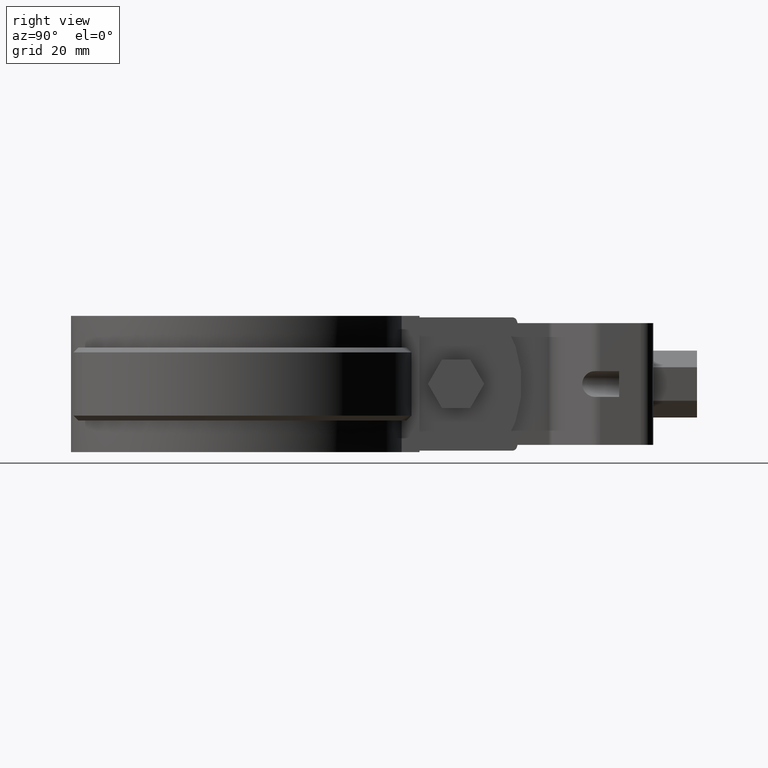
[diagram: clean part render]
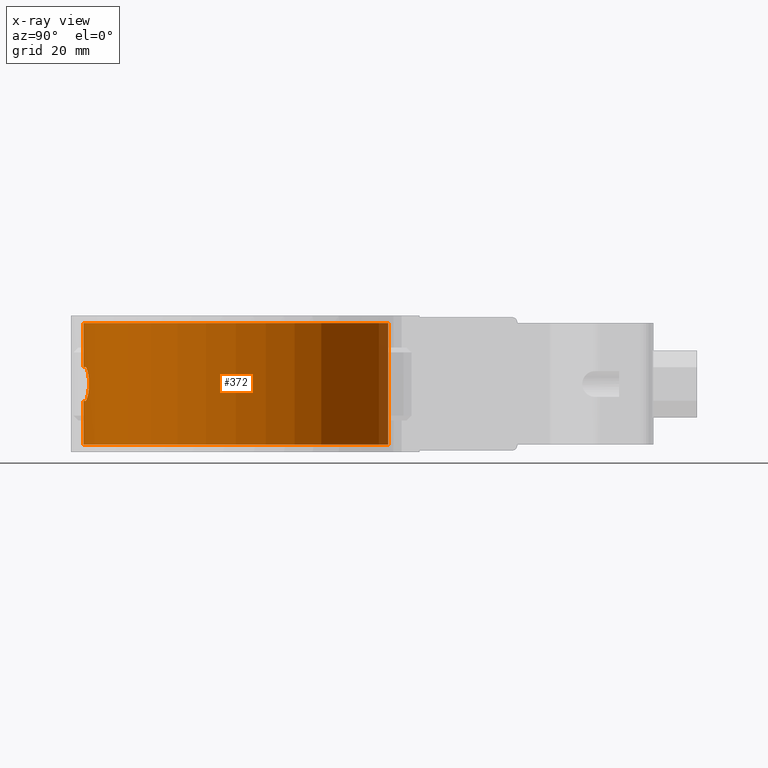
[diagram: x-ray — body ghosted, one internal face saturated and labeled with its STEP entity id]
A machine part, right view, then the same camera in x-ray: the body is ghosted and one INTERNAL B-rep face — a face not visible from any outside direction — is saturated and labeled: STEP entity #372.
In plain terms, the highlighted cylindrical surface (partial cylindrical patch) has radius 31.7 mm, axis along (0, 0, 1).
Its self-contained STEP definition (entity closure, byte-faithful):
#372 = ADVANCED_FACE( '', ( #726, #727 ), #728, .F. );
#726 = FACE_OUTER_BOUND( '', #1464, .T. );
#727 = FACE_BOUND( '', #1465, .T. );
#728 = CYLINDRICAL_SURFACE( '', #1466, 31.7000000000000 );
#1464 = EDGE_LOOP( '', ( #2940, #2941, #2942, #2943 ) );
#1465 = EDGE_LOOP( '', ( #2944, #2945, #2946, #2947, #2948, #2949, #2950, #2951, #2952, #2953, #2954, #2955, #2956, #2957, #2958, #2959 ) );
#1466 = AXIS2_PLACEMENT_3D( '', #2960, #2961, #2962 );
#2940 = ORIENTED_EDGE( '', *, *, #6649, .T. );
#2941 = ORIENTED_EDGE( '', *, *, #6650, .F. );
#2942 = ORIENTED_EDGE( '', *, *, #6651, .F. );
#2943 = ORIENTED_EDGE( '', *, *, #6597, .T. );
#2944 = ORIENTED_EDGE( '', *, *, #6652, .T. );
#2945 = ORIENTED_EDGE( '', *, *, #6653, .T. );
#2946 = ORIENTED_EDGE( '', *, *, #6654, .T. );
#2947 = ORIENTED_EDGE( '', *, *, #6655, .T. );
#2948 = ORIENTED_EDGE( '', *, *, #6656, .T. );
#2949 = ORIENTED_EDGE( '', *, *, #6657, .T. );
#2950 = ORIENTED_EDGE( '', *, *, #6647, .T. );
#2951 = ORIENTED_EDGE( '', *, *, #6644, .T. );
#2952 = ORIENTED_EDGE( '', *, *, #6646, .T. );
#2953 = ORIENTED_EDGE( '', *, *, #6607, .T. );
#2954 = ORIENTED_EDGE( '', *, *, #6610, .T. );
#2955 = ORIENTED_EDGE( '', *, *, #6658, .T. );
#2956 = ORIENTED_EDGE( '', *, *, #6659, .T. );
#2957 = ORIENTED_EDGE( '', *, *, #6660, .T. );
#2958 = ORIENTED_EDGE( '', *, *, #6661, .T. );
#2959 = ORIENTED_EDGE( '', *, *, #6662, .T. );
#2960 = CARTESIAN_POINT( '', ( 0.000000000000000, 0.000000000000000, 0.000000000000000 ) );
#2961 = DIRECTION( '', ( 0.000000000000000, 0.000000000000000, 1.00000000000000 ) );
#2962 = DIRECTION( '', ( 1.00000000000000, -6.12303176911189E-017, 0.000000000000000 ) );
#6597 = EDGE_CURVE( '', #7548, #7546, #7549, .T. );
#6607 = EDGE_CURVE( '', #7558, #7566, #7568, .T. );
#6610 = EDGE_CURVE( '', #7566, #7571, #7573, .T. );
#6644 = EDGE_CURVE( '', #7637, #7635, #7638, .T. );
#6646 = EDGE_CURVE( '', #7635, #7558, #7640, .T. );
#6647 = EDGE_CURVE( '', #7641, #7637, #7642, .T. );
#6649 = EDGE_CURVE( '', #7546, #7644, #7645, .T. );
#6650 = EDGE_CURVE( '', #7646, #7644, #7647, .T. );
#6651 = EDGE_CURVE( '', #7548, #7646, #7648, .T. );
#6652 = EDGE_CURVE( '', #7649, #7650, #7651, .T. );
#6653 = EDGE_CURVE( '', #7650, #7652, #7653, .T. );
#6654 = EDGE_CURVE( '', #7652, #7654, #7655, .T. );
#6655 = EDGE_CURVE( '', #7654, #7656, #7657, .T. );
#6656 = EDGE_CURVE( '', #7656, #7658, #7659, .T. );
#6657 = EDGE_CURVE( '', #7658, #7641, #7660, .T. );
#6658 = EDGE_CURVE( '', #7571, #7661, #7662, .T. );
#6659 = EDGE_CURVE( '', #7661, #7663, #7664, .T. );
#6660 = EDGE_CURVE( '', #7663, #7665, #7666, .T. );
#6661 = EDGE_CURVE( '', #7665, #7667, #7668, .T. );
#6662 = EDGE_CURVE( '', #7667, #7649, #7669, .T. );
#7546 = VERTEX_POINT( '', #9115 );
#7548 = VERTEX_POINT( '', #9117 );
#7549 = CIRCLE( '', #9118, 31.7000000000000 );
#7558 = VERTEX_POINT( '', #9138 );
#7566 = VERTEX_POINT( '', #9182 );
#7568 = B_SPLINE_CURVE_WITH_KNOTS( '', 3, ( #9185, #9186, #9187, #9188, #9189, #9190, #9191, #9192, #9193, #9194, #9195, #9196, #9197, #9198, #9199, #9200, #9201, #9202, #9203, #9204, #9205, #9206, #9207, #9208, #9209, #9210, #9211, #9212, #9213, #9214, #9215, #9216, #9217, #9218 ), .UNSPECIFIED., .F., .F., ( 4, 2, 2, 2, 2, 2, 2, 2, 2, 2, 2, 2, 2, 2, 2, 2, 4 ), ( 3.46944695195361E-018, 0.000691178977991203, 0.00138235795598240, 0.00207353693397360, 0.00276471591196480, 0.00345589488995600, 0.00414707386794720, 0.00483825284593840, 0.00552943182392960, 0.00622061080192080, 0.00691178977991200, 0.00760296875790320, 0.00829414773589440, 0.00898532671388560, 0.00967650569187680, 0.0103676846698680, 0.0110588636478592 ), .UNSPECIFIED. );
#7571 = VERTEX_POINT( '', #9221 );
#7573 = CIRCLE( '', #9224, 31.7000000000000 );
#7635 = VERTEX_POINT( '', #9582 );
#7637 = VERTEX_POINT( '', #9585 );
#7638 = B_SPLINE_CURVE_WITH_KNOTS( '', 3, ( #9586, #9587, #9588, #9589, #9590, #9591 ), .UNSPECIFIED., .F., .F., ( 4, 2, 4 ), ( 4.33680868994202E-019, 0.000335977299192527, 0.000671954598385053 ), .UNSPECIFIED. );
#7640 = CIRCLE( '', #9594, 31.7000000000000 );
#7641 = VERTEX_POINT( '', #9595 );
#7642 = ELLIPSE( '', #9596, 144.411258446055, 31.7000000000000 );
#7644 = VERTEX_POINT( '', #9599 );
#7645 = LINE( '', #9600, #9601 );
#7646 = VERTEX_POINT( '', #9602 );
#7647 = CIRCLE( '', #9603, 31.7000000000000 );
#7648 = LINE( '', #9604, #9605 );
#7649 = VERTEX_POINT( '', #9606 );
#7650 = VERTEX_POINT( '', #9607 );
#7651 = CIRCLE( '', #9608, 31.7000000000000 );
#7652 = VERTEX_POINT( '', #9609 );
#7653 = B_SPLINE_CURVE_WITH_KNOTS( '', 3, ( #9610, #9611, #9612, #9613, #9614, #9615, #9616, #9617, #9618, #9619, #9620, #9621, #9622, #9623, #9624, #9625, #9626, #9627, #9628, #9629, #9630, #9631, #9632, #9633, #9634, #9635, #9636, #9637, #9638, #9639, #9640, #9641, #9642, #9643 ), .UNSPECIFIED., .F., .F., ( 4, 2, 2, 2, 2, 2, 2, 2, 2, 2, 2, 2, 2, 2, 2, 2, 4 ), ( 0.000000000000000, 0.000691178977991196, 0.00138235795598239, 0.00207353693397359, 0.00276471591196478, 0.00345589488995598, 0.00414707386794718, 0.00483825284593837, 0.00552943182392957, 0.00622061080192076, 0.00691178977991196, 0.00760296875790316, 0.00829414773589435, 0.00898532671388555, 0.00967650569187675, 0.0103676846698679, 0.0110588636478591 ), .UNSPECIFIED. );
#7654 = VERTEX_POINT( '', #9644 );
#7655 = CIRCLE( '', #9645, 31.7000000000000 );
#7656 = VERTEX_POINT( '', #9646 );
#7657 = B_SPLINE_CURVE_WITH_KNOTS( '', 3, ( #9647, #9648, #9649, #9650, #9651, #9652 ), .UNSPECIFIED., .F., .F., ( 4, 2, 4 ), ( 8.20849171219253E-018, 0.000335973507445462, 0.000671947014890916 ), .UNSPECIFIED. );
#7658 = VERTEX_POINT( '', #9653 );
#7659 = ELLIPSE( '', #9654, 144.411184778558, 31.7000000000000 );
#7660 = B_SPLINE_CURVE_WITH_KNOTS( '', 3, ( #9655, #9656, #9657, #9658, #9659, #9660, #9661, #9662, #9663, #9664 ), .UNSPECIFIED., .F., .F., ( 4, 2, 2, 2, 4 ), ( 0.000000000000000, 0.000671593304811094, 0.00134318660962219, 0.00201477991443328, 0.00268637321924438 ), .UNSPECIFIED. );
#7661 = VERTEX_POINT( '', #9665 );
#7662 = B_SPLINE_CURVE_WITH_KNOTS( '', 3, ( #9666, #9667, #9668, #9669, #9670, #9671 ), .UNSPECIFIED., .F., .F., ( 4, 2, 4 ), ( 2.81892564846231E-018, 0.000335973507445511, 0.000671947014891020 ), .UNSPECIFIED. );
#7663 = VERTEX_POINT( '', #9672 );
#7664 = ELLIPSE( '', #9673, 144.411184778566, 31.7000000000000 );
#7665 = VERTEX_POINT( '', #9674 );
#7666 = B_SPLINE_CURVE_WITH_KNOTS( '', 3, ( #9675, #9676, #9677, #9678, #9679, #9680, #9681, #9682, #9683, #9684 ), .UNSPECIFIED., .F., .F., ( 4, 2, 2, 2, 4 ), ( 0.000000000000000, 0.000671593304811101, 0.00134318660962220, 0.00201477991443330, 0.00268637321924441 ), .UNSPECIFIED. );
#7667 = VERTEX_POINT( '', #9685 );
#7668 = ELLIPSE( '', #9686, 144.411258446086, 31.7000000000000 );
#7669 = B_SPLINE_CURVE_WITH_KNOTS( '', 3, ( #9687, #9688, #9689, #9690, #9691, #9692 ), .UNSPECIFIED., .F., .F., ( 4, 2, 4 ), ( 4.33680868994202E-019, 0.000335977299192572, 0.000671954598385144 ), .UNSPECIFIED. );
#9115 = CARTESIAN_POINT( '', ( 6.85158501440921, 30.9506992294249, 0.000000000000000 ) );
#9117 = CARTESIAN_POINT( '', ( -6.85158501440923, 30.9506992294249, 0.000000000000000 ) );
#9118 = AXIS2_PLACEMENT_3D( '', #13315, #13316, #13317 );
#9138 = CARTESIAN_POINT( '', ( -5.00000000000005, -31.3031947251395, -9.00000000000000 ) );
#9182 = CARTESIAN_POINT( '', ( -5.00000000000005, -31.3031947251395, -16.0000000000000 ) );
#9185 = CARTESIAN_POINT( '', ( -5.00000000000005, -31.3031947251395, -8.99999999999997 ) );
#9186 = CARTESIAN_POINT( '', ( -5.23081910024194, -31.2663264274675, -8.99999999999997 ) );
#9187 = CARTESIAN_POINT( '', ( -5.45738421522894, -31.2275219453692, -9.02260605858766 ) );
#9188 = CARTESIAN_POINT( '', ( -5.90247544172510, -31.1464597182565, -9.11075126005851 ) );
#9189 = CARTESIAN_POINT( '', ( -6.12315325726286, -31.1037506549934, -9.17726839373158 ) );
#9190 = CARTESIAN_POINT( '', ( -6.54487208417177, -31.0177523367145, -9.35112896260548 ) );
#9191 = CARTESIAN_POINT( '', ( -6.74481423243011, -30.9747494185992, -9.45743688617193 ) );
#9192 = CARTESIAN_POINT( '', ( -7.12334046004392, -30.8898954557199, -9.70840685305713 ) );
#9193 = CARTESIAN_POINT( '', ( -7.30311137878189, -30.8477262237138, -9.85472398390486 ) );
#9194 = CARTESIAN_POINT( '', ( -7.62631920825311, -30.7694150792296, -10.1752947195906 ) );
#9195 = CARTESIAN_POINT( '', ( -7.77157588367693, -30.7328851187544, -10.3503269958804 ) );
#9196 = CARTESIAN_POINT( '', ( -8.02867606090618, -30.6667243139423, -10.7308622943044 ) );
#9197 = CARTESIAN_POINT( '', ( -8.13934190056060, -30.6373876935816, -10.9357023006229 ) );
#9198 = CARTESIAN_POINT( '', ( -8.31648141621131, -30.5897784907779, -11.3583144579977 ) );
#9199 = CARTESIAN_POINT( '', ( -8.38451105977702, -30.5711019272253, -11.5782674575315 ) );
#9200 = CARTESIAN_POINT( '', ( -8.47694833014021, -30.5455994500755, -12.0359565719313 ) );
#9201 = CARTESIAN_POINT( '', ( -8.49974920301196, -30.5392249992133, -12.2656706277309 ) );
#9202 = CARTESIAN_POINT( '', ( -8.50024672237698, -30.5390865240824, -12.7267765886949 ) );
#9203 = CARTESIAN_POINT( '', ( -8.47723220471902, -30.5455194596891, -12.9608695359545 ) );
#9204 = CARTESIAN_POINT( '', ( -8.38629254935344, -30.5706120676645, -13.4146405331601 ) );
#9205 = CARTESIAN_POINT( '', ( -8.31906478371763, -30.5890766914277, -13.6344599035755 ) );
#9206 = CARTESIAN_POINT( '', ( -8.14150355722485, -30.6368139912987, -14.0601748976569 ) );
#9207 = CARTESIAN_POINT( '', ( -8.03076765310175, -30.6661722941769, -14.2653935811129 ) );
#9208 = CARTESIAN_POINT( '', ( -7.77563070415972, -30.7318551250453, -14.6443043761202 ) );
#9209 = CARTESIAN_POINT( '', ( -7.62997081570179, -30.7685189506177, -14.8208190710266 ) );
#9210 = CARTESIAN_POINT( '', ( -7.30348785322535, -30.8476462350172, -15.1451637684512 ) );
#9211 = CARTESIAN_POINT( '', ( -7.12722269205172, -30.8889972279325, -15.2886123203798 ) );
#9212 = CARTESIAN_POINT( '', ( -6.74955200051353, -30.9737146761845, -15.5398195427448 ) );
#9213 = CARTESIAN_POINT( '', ( -6.54577848582126, -31.0175583875793, -15.6483990806522 ) );
#9214 = CARTESIAN_POINT( '', ( -6.12482112184702, -31.1034195955639, -15.8221416800201 ) );
#9215 = CARTESIAN_POINT( '', ( -5.90798227914977, -31.1454209708295, -15.8878308190517 ) );
#9216 = CARTESIAN_POINT( '', ( -5.46145874370253, -31.2268149264661, -15.9769074341470 ) );
#9217 = CARTESIAN_POINT( '', ( -5.23082235296654, -31.2663259079160, -16.0000000000000 ) );
#9218 = CARTESIAN_POINT( '', ( -5.00000000000006, -31.3031947251395, -16.0000000000000 ) );
#9221 = CARTESIAN_POINT( '', ( -1.65000000000006, -31.6570292352267, -16.0000000000000 ) );
#9224 = AXIS2_PLACEMENT_3D( '', #13328, #13329, #13330 );
#9582 = CARTESIAN_POINT( '', ( -1.65000000000003, -31.6570292352267, -9.00000000000000 ) );
#9585 = CARTESIAN_POINT( '', ( -1.16219512100914, -31.6786884592892, -8.60975609337373 ) );
#9586 = CARTESIAN_POINT( '', ( -1.16219512100916, -31.6786884592892, -8.60975609337372 ) );
#9587 = CARTESIAN_POINT( '', ( -1.18713209904709, -31.6777735971021, -8.72058711131791 ) );
#9588 = CARTESIAN_POINT( '', ( -1.24908359425599, -31.6755057835041, -8.81961707537800 ) );
#9589 = CARTESIAN_POINT( '', ( -1.42642438731876, -31.6680152509358, -8.96141411409069 ) );
#9590 = CARTESIAN_POINT( '', ( -1.53655201146209, -31.6629422720975, -8.99999999999994 ) );
#9591 = CARTESIAN_POINT( '', ( -1.65000000000003, -31.6570292352267, -8.99999999999994 ) );
#9594 = AXIS2_PLACEMENT_3D( '', #13361, #13362, #13363 );
#9595 = CARTESIAN_POINT( '', ( -0.975610000000026, -31.6849835904629, -7.78048800000004 ) );
#9596 = AXIS2_PLACEMENT_3D( '', #13364, #13365, #13366 );
#9599 = CARTESIAN_POINT( '', ( 6.85158501440921, 30.9506992294249, -25.0000000000000 ) );
#9600 = CARTESIAN_POINT( '', ( 6.85158501440921, 30.9506992294249, 0.000000000000000 ) );
#9601 = VECTOR( '', #13368, 1000.00000000000 );
#9602 = CARTESIAN_POINT( '', ( -6.85158501440923, 30.9506992294249, -25.0000000000000 ) );
#9603 = AXIS2_PLACEMENT_3D( '', #13369, #13370, #13371 );
#9604 = CARTESIAN_POINT( '', ( -6.85158501440923, 30.9506992294249, 0.000000000000000 ) );
#9605 = VECTOR( '', #13372, 1000.00000000000 );
#9606 = CARTESIAN_POINT( '', ( 1.65000000000001, -31.6570292352267, -16.0000000000000 ) );
#9607 = CARTESIAN_POINT( '', ( 4.99999999999994, -31.3031947251395, -16.0000000000000 ) );
#9608 = AXIS2_PLACEMENT_3D( '', #13373, #13374, #13375 );
#9609 = CARTESIAN_POINT( '', ( 5.00000000000000, -31.3031947251395, -9.00000000000000 ) );
#9610 = CARTESIAN_POINT( '', ( 4.99999999999994, -31.3031947251395, -16.0000000000000 ) );
#9611 = CARTESIAN_POINT( '', ( 5.23081910024182, -31.2663264274675, -16.0000000000000 ) );
#9612 = CARTESIAN_POINT( '', ( 5.45738421522883, -31.2275219453692, -15.9773939414123 ) );
#9613 = CARTESIAN_POINT( '', ( 5.90247544172498, -31.1464597182565, -15.8892487399414 ) );
#9614 = CARTESIAN_POINT( '', ( 6.12315325726274, -31.1037506549934, -15.8227316062684 ) );
#9615 = CARTESIAN_POINT( '', ( 6.54487208417165, -31.0177523367145, -15.6488710373945 ) );
#9616 = CARTESIAN_POINT( '', ( 6.74481423242999, -30.9747494185992, -15.5425631138280 ) );
#9617 = CARTESIAN_POINT( '', ( 7.12334046004379, -30.8898954557199, -15.2915931469428 ) );
#9618 = CARTESIAN_POINT( '', ( 7.30311137878176, -30.8477262237139, -15.1452760160951 ) );
#9619 = CARTESIAN_POINT( '', ( 7.62631920825299, -30.7694150792297, -14.8247052804094 ) );
#9620 = CARTESIAN_POINT( '', ( 7.77157588367680, -30.7328851187544, -14.6496730041195 ) );
#9621 = CARTESIAN_POINT( '', ( 8.02867606090605, -30.6667243139423, -14.2691377056955 ) );
#9622 = CARTESIAN_POINT( '', ( 8.13934190056048, -30.6373876935817, -14.0642976993771 ) );
#9623 = CARTESIAN_POINT( '', ( 8.31648141621119, -30.5897784907780, -13.6416855420022 ) );
#9624 = CARTESIAN_POINT( '', ( 8.38451105977691, -30.5711019272253, -13.4217325424685 ) );
#9625 = CARTESIAN_POINT( '', ( 8.47694833014010, -30.5455994500756, -12.9640434280686 ) );
#9626 = CARTESIAN_POINT( '', ( 8.49974920301185, -30.5392249992133, -12.7343293722691 ) );
#9627 = CARTESIAN_POINT( '', ( 8.50024672237687, -30.5390865240825, -12.2732234113051 ) );
#9628 = CARTESIAN_POINT( '', ( 8.47723220471892, -30.5455194596892, -12.0391304640454 ) );
#9629 = CARTESIAN_POINT( '', ( 8.38629254935335, -30.5706120676645, -11.5853594668399 ) );
#9630 = CARTESIAN_POINT( '', ( 8.31906478371753, -30.5890766914278, -11.3655400964245 ) );
#9631 = CARTESIAN_POINT( '', ( 8.14150355722475, -30.6368139912987, -10.9398251023431 ) );
#9632 = CARTESIAN_POINT( '', ( 8.03076765310166, -30.6661722941769, -10.7346064188871 ) );
#9633 = CARTESIAN_POINT( '', ( 7.77563070415963, -30.7318551250454, -10.3556956238798 ) );
#9634 = CARTESIAN_POINT( '', ( 7.62997081570171, -30.7685189506177, -10.1791809289734 ) );
#9635 = CARTESIAN_POINT( '', ( 7.30348785322527, -30.8476462350172, -9.85483623154874 ) );
#9636 = CARTESIAN_POINT( '', ( 7.12722269205165, -30.8889972279326, -9.71138767962015 ) );
#9637 = CARTESIAN_POINT( '', ( 6.74955200051346, -30.9737146761845, -9.46018045725521 ) );
#9638 = CARTESIAN_POINT( '', ( 6.54577848582120, -31.0175583875793, -9.35160091934772 ) );
#9639 = CARTESIAN_POINT( '', ( 6.12482112184695, -31.1034195955639, -9.17785831997989 ) );
#9640 = CARTESIAN_POINT( '', ( 5.90798227914971, -31.1454209708295, -9.11216918094827 ) );
#9641 = CARTESIAN_POINT( '', ( 5.46145874370247, -31.2268149264661, -9.02309256585293 ) );
#9642 = CARTESIAN_POINT( '', ( 5.23082235296648, -31.2663259079160, -8.99999999999997 ) );
#9643 = CARTESIAN_POINT( '', ( 5.00000000000000, -31.3031947251395, -8.99999999999997 ) );
#9644 = CARTESIAN_POINT( '', ( 1.64999999999995, -31.6570292352267, -9.00000000000000 ) );
#9645 = AXIS2_PLACEMENT_3D( '', #13376, #13377, #13378 );
#9646 = CARTESIAN_POINT( '', ( 1.16219499999998, -31.6786884637286, -8.60975599999999 ) );
#9647 = CARTESIAN_POINT( '', ( 1.64999999999995, -31.6570292352267, -8.99999999999995 ) );
#9648 = CARTESIAN_POINT( '', ( 1.53655198221246, -31.6629422736220, -9.00000000048687 ) );
#9649 = CARTESIAN_POINT( '', ( 1.42642396540933, -31.6680152639956, -8.96141315168630 ) );
#9650 = CARTESIAN_POINT( '', ( 1.24908741115346, -31.6755056270464, -8.81962082432980 ) );
#9651 = CARTESIAN_POINT( '', ( 1.18713198536212, -31.6777736013682, -8.72058704827509 ) );
#9652 = CARTESIAN_POINT( '', ( 1.16219499999999, -31.6786884637286, -8.60975599999999 ) );
#9653 = CARTESIAN_POINT( '', ( 0.975609757981812, -31.6849835979148, -7.78048781325256 ) );
#9654 = AXIS2_PLACEMENT_3D( '', #13379, #13380, #13381 );
#9655 = CARTESIAN_POINT( '', ( 0.975609757981814, -31.6849835979148, -7.78048781325255 ) );
#9656 = CARTESIAN_POINT( '', ( 0.925762090024737, -31.6865184534126, -7.55894271246154 ) );
#9657 = CARTESIAN_POINT( '', ( 0.802004224886772, -31.6903492755237, -7.36098149762313 ) );
#9658 = CARTESIAN_POINT( '', ( 0.447401526348110, -31.6973386872722, -7.07729349203977 ) );
#9659 = CARTESIAN_POINT( '', ( 0.227087794269848, -31.7000000051551, -6.99999985585794 ) );
#9660 = CARTESIAN_POINT( '', ( -0.227089233509893, -31.6999999948449, -7.00000013727507 ) );
#9661 = CARTESIAN_POINT( '', ( -0.447421156045874, -31.6973383527115, -7.07730562708405 ) );
#9662 = CARTESIAN_POINT( '', ( -0.802003305823679, -31.6903492412848, -7.36098401156451 ) );
#9663 = CARTESIAN_POINT( '', ( -0.925762373480284, -31.6865184450658, -7.55894288535638 ) );
#9664 = CARTESIAN_POINT( '', ( -0.975610000000026, -31.6849835904628, -7.78048800000004 ) );
#9665 = CARTESIAN_POINT( '', ( -1.16219500000000, -31.6786884637287, -16.3902440000000 ) );
#9666 = CARTESIAN_POINT( '', ( -1.65000000000006, -31.6570292352267, -16.0000000000000 ) );
#9667 = CARTESIAN_POINT( '', ( -1.53655198221256, -31.6629422736220, -15.9999999995130 ) );
#9668 = CARTESIAN_POINT( '', ( -1.42642396540941, -31.6680152639956, -16.0385868483136 ) );
#9669 = CARTESIAN_POINT( '', ( -1.24908741115350, -31.6755056270464, -16.1803791756701 ) );
#9670 = CARTESIAN_POINT( '', ( -1.18713198536215, -31.6777736013682, -16.2794129517248 ) );
#9671 = CARTESIAN_POINT( '', ( -1.16219500000000, -31.6786884637286, -16.3902440000000 ) );
#9672 = CARTESIAN_POINT( '', ( -0.975609757981852, -31.6849835979148, -17.2195121867475 ) );
#9673 = AXIS2_PLACEMENT_3D( '', #13382, #13383, #13384 );
#9674 = CARTESIAN_POINT( '', ( 0.975610000000013, -31.6849835904628, -17.2195120000000 ) );
#9675 = CARTESIAN_POINT( '', ( -0.975609757981852, -31.6849835979148, -17.2195121867475 ) );
#9676 = CARTESIAN_POINT( '', ( -0.925762090024772, -31.6865184534126, -17.4410572875385 ) );
#9677 = CARTESIAN_POINT( '', ( -0.802004224886805, -31.6903492755237, -17.6390185023769 ) );
#9678 = CARTESIAN_POINT( '', ( -0.447401526348137, -31.6973386872722, -17.9227065079602 ) );
#9679 = CARTESIAN_POINT( '', ( -0.227087794269872, -31.7000000051551, -18.0000001441421 ) );
#9680 = CARTESIAN_POINT( '', ( 0.227089233509875, -31.6999999948449, -17.9999998627249 ) );
#9681 = CARTESIAN_POINT( '', ( 0.447421156045856, -31.6973383527115, -17.9226943729160 ) );
#9682 = CARTESIAN_POINT( '', ( 0.802003305823666, -31.6903492412848, -17.6390159884355 ) );
#9683 = CARTESIAN_POINT( '', ( 0.925762373480271, -31.6865184450658, -17.4410571146436 ) );
#9684 = CARTESIAN_POINT( '', ( 0.975610000000014, -31.6849835904628, -17.2195120000000 ) );
#9685 = CARTESIAN_POINT( '', ( 1.16219512100908, -31.6786884592892, -16.3902439066263 ) );
#9686 = AXIS2_PLACEMENT_3D( '', #13385, #13386, #13387 );
#9687 = CARTESIAN_POINT( '', ( 1.16219512100909, -31.6786884592892, -16.3902439066263 ) );
#9688 = CARTESIAN_POINT( '', ( 1.18713209904701, -31.6777735971021, -16.2794128886821 ) );
#9689 = CARTESIAN_POINT( '', ( 1.24908359425592, -31.6755057835041, -16.1803829246220 ) );
#9690 = CARTESIAN_POINT( '', ( 1.42642438731870, -31.6680152509358, -16.0385858859092 ) );
#9691 = CARTESIAN_POINT( '', ( 1.53655201146205, -31.6629422720975, -16.0000000000000 ) );
#9692 = CARTESIAN_POINT( '', ( 1.65000000000001, -31.6570292352267, -16.0000000000000 ) );
#13315 = CARTESIAN_POINT( '', ( 0.000000000000000, 0.000000000000000, 0.000000000000000 ) );
#13316 = DIRECTION( '', ( 0.000000000000000, 0.000000000000000, 1.00000000000000 ) );
#13317 = DIRECTION( '', ( 1.00000000000000, -6.12303176911189E-017, 0.000000000000000 ) );
#13328 = CARTESIAN_POINT( '', ( 0.000000000000000, 0.000000000000000, -16.0000000000000 ) );
#13329 = DIRECTION( '', ( -6.12303176911189E-017, 0.000000000000000, 1.00000000000000 ) );
#13330 = DIRECTION( '', ( 1.00000000000000, 0.000000000000000, 6.12303176911189E-017 ) );
#13361 = CARTESIAN_POINT( '', ( 0.000000000000000, 0.000000000000000, -9.00000000000000 ) );
#13362 = DIRECTION( '', ( 6.12303176911189E-017, 0.000000000000000, -1.00000000000000 ) );
#13363 = DIRECTION( '', ( -1.00000000000000, 0.000000000000000, -6.12303176911189E-017 ) );
#13364 = CARTESIAN_POINT( '', ( 0.000000000000000, 0.000000000000000, -3.44443890776446 ) );
#13365 = DIRECTION( '', ( 0.975609806487711, 0.000000000000000, -0.219511971165610 ) );
#13366 = DIRECTION( '', ( -0.219511971165610, 0.000000000000000, -0.975609806487711 ) );
#13368 = DIRECTION( '', ( 0.000000000000000, 0.000000000000000, -1.00000000000000 ) );
#13369 = CARTESIAN_POINT( '', ( 0.000000000000000, 0.000000000000000, -25.0000000000000 ) );
#13370 = DIRECTION( '', ( 0.000000000000000, 0.000000000000000, 1.00000000000000 ) );
#13371 = DIRECTION( '', ( 1.00000000000000, -6.12303176911189E-017, 0.000000000000000 ) );
#13372 = DIRECTION( '', ( 0.000000000000000, 0.000000000000000, -1.00000000000000 ) );
#13373 = CARTESIAN_POINT( '', ( 0.000000000000000, 0.000000000000000, -16.0000000000000 ) );
#13374 = DIRECTION( '', ( -6.12303176911189E-017, 0.000000000000000, 1.00000000000000 ) );
#13375 = DIRECTION( '', ( 1.00000000000000, 0.000000000000000, 6.12303176911189E-017 ) );
#13376 = CARTESIAN_POINT( '', ( 0.000000000000000, 0.000000000000000, -9.00000000000000 ) );
#13377 = DIRECTION( '', ( 6.12303176911189E-017, 0.000000000000000, -1.00000000000000 ) );
#13378 = DIRECTION( '', ( -1.00000000000000, 0.000000000000000, -6.12303176911189E-017 ) );
#13379 = CARTESIAN_POINT( '', ( 0.000000000000000, 0.000000000000000, -3.44444212055030 ) );
#13380 = DIRECTION( '', ( -0.975609781292647, 0.000000000000000, -0.219512083143762 ) );
#13381 = DIRECTION( '', ( 0.219512083143762, 0.000000000000000, -0.975609781292647 ) );
#13382 = CARTESIAN_POINT( '', ( 0.000000000000000, 0.000000000000000, -21.5555578794501 ) );
#13383 = DIRECTION( '', ( 0.975609781292650, 0.000000000000000, 0.219512083143750 ) );
#13384 = DIRECTION( '', ( 0.219512083143750, 0.000000000000000, -0.975609781292650 ) );
#13385 = CARTESIAN_POINT( '', ( 0.000000000000000, 0.000000000000000, -21.5555610922364 ) );
#13386 = DIRECTION( '', ( -0.975609806487721, 0.000000000000000, 0.219511971165564 ) );
#13387 = DIRECTION( '', ( -0.219511971165564, 0.000000000000000, -0.975609806487721 ) );